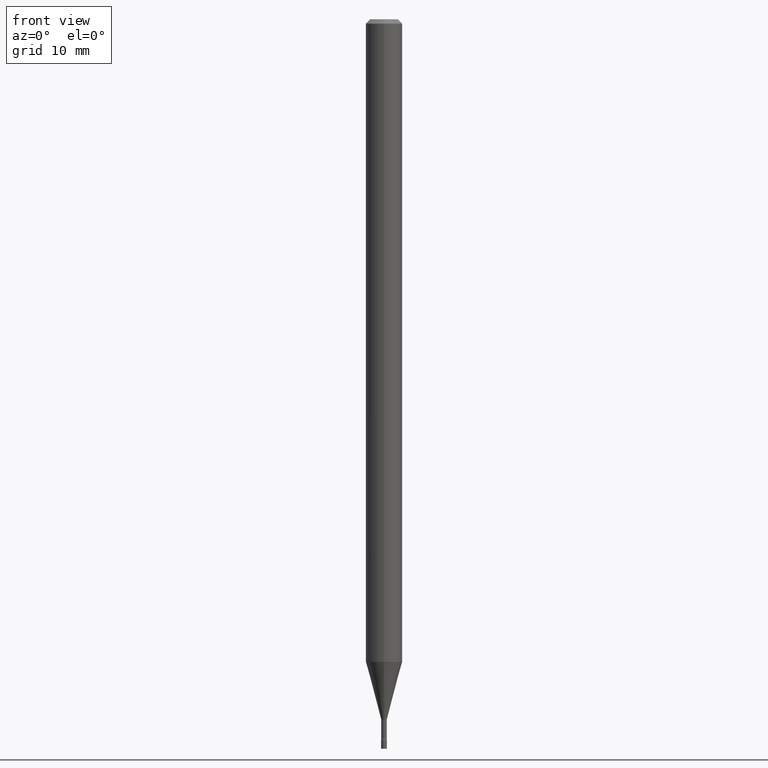
[diagram: clean part render]
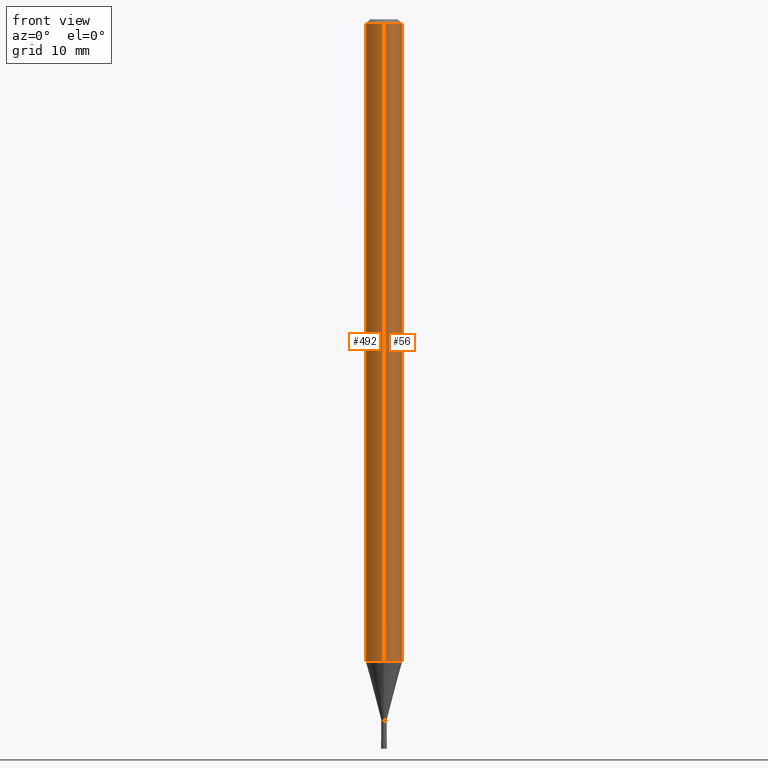
[diagram: same view with one multi-face feature highlighted, each face labeled with its STEP entity id]
A machine part, front view. The highlighted faces form ONE feature: a constant-radius fillet chain: 2 tangent blend faces with common blend radius 1.5875 mm. The faces share edges in the B-rep.
Their STEP definitions:
[1] entity #492 (Cylinder):
#19 = VECTOR ( 'NONE', #38, 39.37007874015748143 ) ;
#22 = DIRECTION ( 'NONE',  ( -6.982962677686265922E-15, -1.000000000000000000, 4.370956789862821150E-15 ) ) ;
#24 = DIRECTION ( 'NONE',  ( -6.982962677686265922E-15, -1.000000000000000000, 3.483106191921935554E-15 ) ) ;
#27 = VECTOR ( 'NONE', #311, 39.37007874015748143 ) ;
#36 = ORIENTED_EDGE ( 'NONE', *, *, #134, .F. ) ;
#38 = DIRECTION ( 'NONE',  ( -2.445536542724447659E-29, 3.491384336263527933E-15, 1.000000000000000000 ) ) ;
#53 = EDGE_CURVE ( 'NONE', #104, #300, #63, .T. ) ;
#60 = CARTESIAN_POINT ( 'NONE',  ( -4.364351673553912750E-16, -0.06250000000000005551, -0.01499999999999981209 ) ) ;
#63 = CIRCLE ( 'NONE', #407, 0.06250000000000000000 ) ;
#75 = VERTEX_POINT ( 'NONE', #60 ) ;
#76 = CARTESIAN_POINT ( 'NONE',  ( 4.440892098501167517E-16, 0.06249999999999995143, -0.01500000000000024751 ) ) ;
#77 = EDGE_CURVE ( 'NONE', #300, #75, #278, .T. ) ;
#91 = ORIENTED_EDGE ( 'NONE', *, *, #194, .F. ) ;
#104 = VERTEX_POINT ( 'NONE', #397 ) ;
#107 = DIRECTION ( 'NONE',  ( -2.445536542724447659E-29, 3.491384336263527933E-15, 1.000000000000000000 ) ) ;
#134 = EDGE_CURVE ( 'NONE', #237, #75, #516, .T. ) ;
#145 = DIRECTION ( 'NONE',  ( -2.445536542724447659E-29, 3.491384336263527933E-15, 1.000000000000000000 ) ) ;
#194 = EDGE_CURVE ( 'NONE', #104, #237, #334, .T. ) ;
#219 = ORIENTED_EDGE ( 'NONE', *, *, #77, .T. ) ;
#222 = AXIS2_PLACEMENT_3D ( 'NONE', #230, #107, #24 ) ;
#227 = DIRECTION ( 'NONE',  ( -6.982962677686265922E-15, -1.000000000000000000, 3.491384336263527933E-15 ) ) ;
#230 = CARTESIAN_POINT ( 'NONE',  ( 3.668304814086678845E-31, -5.237076504395302352E-17, -0.01500000000000003067 ) ) ;
#237 = VERTEX_POINT ( 'NONE', #76 ) ;
#278 = LINE ( 'NONE', #433, #27 ) ;
#288 = CARTESIAN_POINT ( 'NONE',  ( 4.440892098500625669E-16, 0.06250000000000000000, -2.182115210164704958E-16 ) ) ;
#295 = CYLINDRICAL_SURFACE ( 'NONE', #441, 0.06250000000000000000 ) ;
#300 = VERTEX_POINT ( 'NONE', #493 ) ;
#311 = DIRECTION ( 'NONE',  ( -2.445536542724447659E-29, 3.491384336263527933E-15, 1.000000000000000000 ) ) ;
#316 = DIRECTION ( 'NONE',  ( -2.445536542724447659E-29, 3.491384336263527933E-15, 1.000000000000000000 ) ) ;
#334 = LINE ( 'NONE', #288, #19 ) ;
#346 = FACE_OUTER_BOUND ( 'NONE', #486, .T. ) ;
#370 = ORIENTED_EDGE ( 'NONE', *, *, #53, .T. ) ;
#379 = CARTESIAN_POINT ( 'NONE',  ( 0.000000000000000000, 0.000000000000000000, 0.000000000000000000 ) ) ;
#396 = CARTESIAN_POINT ( 'NONE',  ( 5.384651084527414433E-29, -7.687428146879962724E-15, -2.201828102118093433 ) ) ;
#397 = CARTESIAN_POINT ( 'NONE',  ( 4.440892098501162587E-16, 0.06249999999999230477, -2.201828102118093877 ) ) ;
#407 = AXIS2_PLACEMENT_3D ( 'NONE', #396, #316, #22 ) ;
#433 = CARTESIAN_POINT ( 'NONE',  ( -4.364351673553916201E-16, -0.06250000000000000000, 2.182115210164704958E-16 ) ) ;
#441 = AXIS2_PLACEMENT_3D ( 'NONE', #379, #145, #227 ) ;
#486 = EDGE_LOOP ( 'NONE', ( #91, #370, #219, #36 ) ) ;
#492 = ADVANCED_FACE ( 'NONE', ( #346 ), #295, .T. ) ;
#493 = CARTESIAN_POINT ( 'NONE',  ( -4.364351673553378297E-16, -0.06250000000000768829, -2.201828102118092989 ) ) ;
#516 = CIRCLE ( 'NONE', #222, 0.06250000000000000000 ) ;
[2] entity #56 (Cylinder):
#14 = DIRECTION ( 'NONE',  ( -2.445536542724447659E-29, 3.491384336263527933E-15, 1.000000000000000000 ) ) ;
#19 = VECTOR ( 'NONE', #38, 39.37007874015748143 ) ;
#27 = VECTOR ( 'NONE', #311, 39.37007874015748143 ) ;
#38 = DIRECTION ( 'NONE',  ( -2.445536542724447659E-29, 3.491384336263527933E-15, 1.000000000000000000 ) ) ;
#56 = ADVANCED_FACE ( 'NONE', ( #265 ), #506, .T. ) ;
#60 = CARTESIAN_POINT ( 'NONE',  ( -4.364351673553912750E-16, -0.06250000000000005551, -0.01499999999999981209 ) ) ;
#75 = VERTEX_POINT ( 'NONE', #60 ) ;
#76 = CARTESIAN_POINT ( 'NONE',  ( 4.440892098501167517E-16, 0.06249999999999995143, -0.01500000000000024751 ) ) ;
#77 = EDGE_CURVE ( 'NONE', #300, #75, #278, .T. ) ;
#88 = CIRCLE ( 'NONE', #321, 0.06250000000000000000 ) ;
#103 = CARTESIAN_POINT ( 'NONE',  ( 0.000000000000000000, 0.000000000000000000, 0.000000000000000000 ) ) ;
#104 = VERTEX_POINT ( 'NONE', #397 ) ;
#186 = DIRECTION ( 'NONE',  ( -6.982962677686265922E-15, -1.000000000000000000, 3.491384336263527933E-15 ) ) ;
#194 = EDGE_CURVE ( 'NONE', #104, #237, #334, .T. ) ;
#199 = CARTESIAN_POINT ( 'NONE',  ( 5.384651084527414433E-29, -7.687428146879962724E-15, -2.201828102118093433 ) ) ;
#216 = CARTESIAN_POINT ( 'NONE',  ( 3.668304814086678845E-31, -5.237076504395302352E-17, -0.01500000000000003067 ) ) ;
#237 = VERTEX_POINT ( 'NONE', #76 ) ;
#239 = ORIENTED_EDGE ( 'NONE', *, *, #250, .T. ) ;
#250 = EDGE_CURVE ( 'NONE', #300, #104, #88, .T. ) ;
#260 = DIRECTION ( 'NONE',  ( -6.982962677686265922E-15, -1.000000000000000000, 3.483106191921935554E-15 ) ) ;
#265 = FACE_OUTER_BOUND ( 'NONE', #498, .T. ) ;
#276 = AXIS2_PLACEMENT_3D ( 'NONE', #216, #14, #260 ) ;
#278 = LINE ( 'NONE', #433, #27 ) ;
#288 = CARTESIAN_POINT ( 'NONE',  ( 4.440892098500625669E-16, 0.06250000000000000000, -2.182115210164704958E-16 ) ) ;
#300 = VERTEX_POINT ( 'NONE', #493 ) ;
#311 = DIRECTION ( 'NONE',  ( -2.445536542724447659E-29, 3.491384336263527933E-15, 1.000000000000000000 ) ) ;
#315 = DIRECTION ( 'NONE',  ( -2.445536542724447659E-29, 3.491384336263527933E-15, 1.000000000000000000 ) ) ;
#321 = AXIS2_PLACEMENT_3D ( 'NONE', #199, #485, #451 ) ;
#334 = LINE ( 'NONE', #288, #19 ) ;
#361 = ORIENTED_EDGE ( 'NONE', *, *, #194, .T. ) ;
#382 = AXIS2_PLACEMENT_3D ( 'NONE', #103, #315, #186 ) ;
#383 = CIRCLE ( 'NONE', #276, 0.06250000000000000000 ) ;
#397 = CARTESIAN_POINT ( 'NONE',  ( 4.440892098501162587E-16, 0.06249999999999230477, -2.201828102118093877 ) ) ;
#405 = EDGE_CURVE ( 'NONE', #75, #237, #383, .T. ) ;
#433 = CARTESIAN_POINT ( 'NONE',  ( -4.364351673553916201E-16, -0.06250000000000000000, 2.182115210164704958E-16 ) ) ;
#451 = DIRECTION ( 'NONE',  ( -6.982962677686265922E-15, -1.000000000000000000, 4.370956789862821150E-15 ) ) ;
#452 = ORIENTED_EDGE ( 'NONE', *, *, #77, .F. ) ;
#464 = ORIENTED_EDGE ( 'NONE', *, *, #405, .F. ) ;
#485 = DIRECTION ( 'NONE',  ( -2.445536542724447659E-29, 3.491384336263527933E-15, 1.000000000000000000 ) ) ;
#493 = CARTESIAN_POINT ( 'NONE',  ( -4.364351673553378297E-16, -0.06250000000000768829, -2.201828102118092989 ) ) ;
#498 = EDGE_LOOP ( 'NONE', ( #239, #361, #464, #452 ) ) ;
#506 = CYLINDRICAL_SURFACE ( 'NONE', #382, 0.06250000000000000000 ) ;